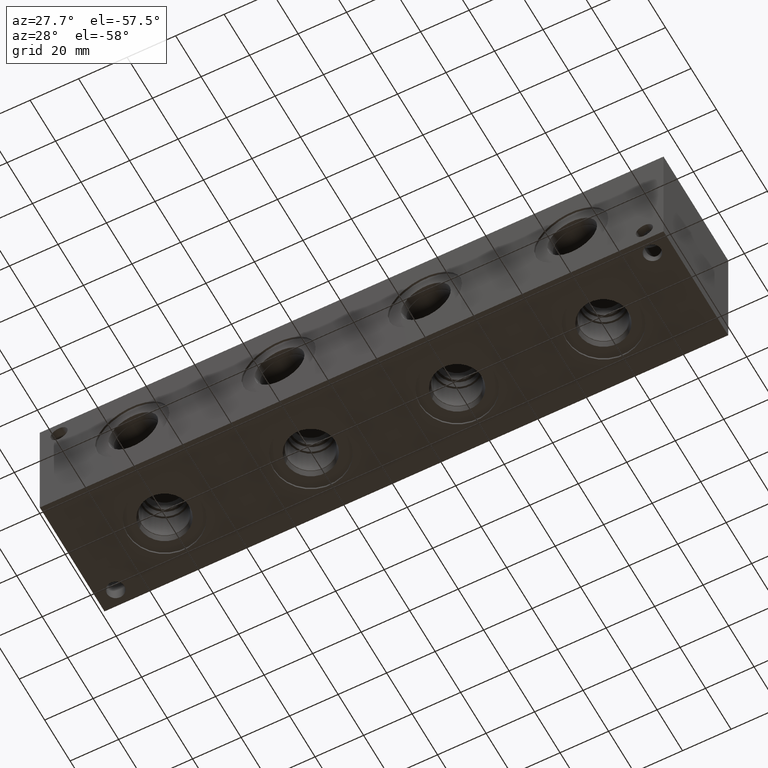
[diagram: clean part render]
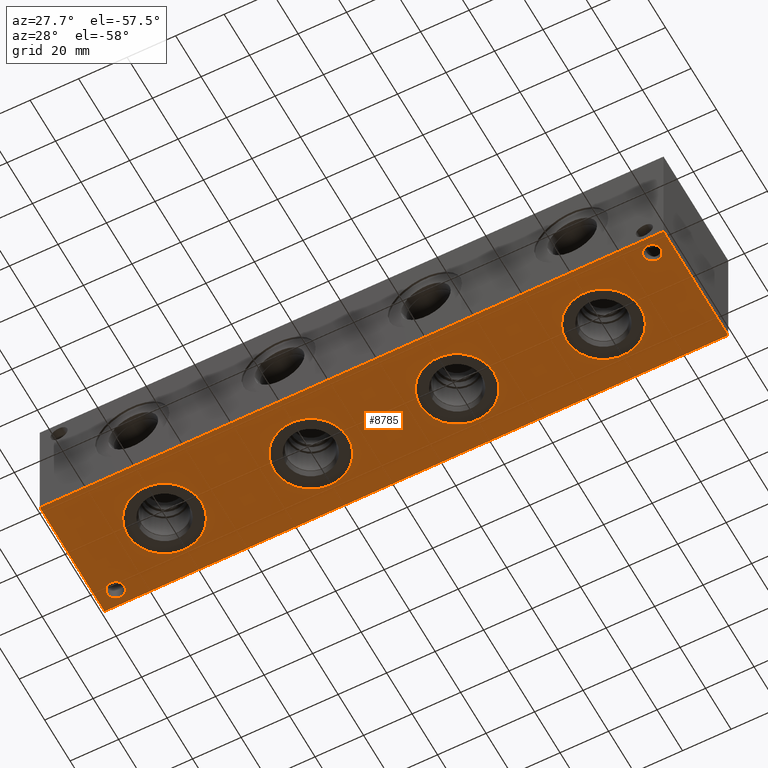
[diagram: same view with one face highlighted and labeled with its STEP entity id]
A machine part, auxiliary view. The second image highlights one B-rep face of the part: STEP entity #8785.
In plain terms, the highlighted planar face has unit normal (0, 0, 1).
Its self-contained STEP definition (entity closure, byte-faithful):
#186=CIRCLE('',#9022,15.3162);
#187=CIRCLE('',#9023,15.3162);
#197=CIRCLE('',#9038,15.3162);
#198=CIRCLE('',#9039,15.3162);
#208=CIRCLE('',#9054,15.3162);
#209=CIRCLE('',#9055,15.3162);
#288=CIRCLE('',#9211,15.3162);
#289=CIRCLE('',#9212,15.3162);
#404=CIRCLE('',#9413,3.5687);
#405=CIRCLE('',#9415,3.5687);
#484=FACE_BOUND('',#1719,.T.);
#485=FACE_BOUND('',#1720,.T.);
#486=FACE_BOUND('',#1721,.T.);
#487=FACE_BOUND('',#1722,.T.);
#488=FACE_BOUND('',#1723,.T.);
#489=FACE_BOUND('',#1724,.T.);
#728=PLANE('',#9442);
#1190=FACE_OUTER_BOUND('',#1718,.T.);
#1718=EDGE_LOOP('',(#7919,#7920,#7921,#7922));
#1719=EDGE_LOOP('',(#7923,#7924));
#1720=EDGE_LOOP('',(#7925,#7926));
#1721=EDGE_LOOP('',(#7927,#7928));
#1722=EDGE_LOOP('',(#7929,#7930));
#1723=EDGE_LOOP('',(#7931));
#1724=EDGE_LOOP('',(#7932));
#2447=LINE('',#15360,#3177);
#2450=LINE('',#15365,#3180);
#2452=LINE('',#15369,#3182);
#2454=LINE('',#15372,#3184);
#3177=VECTOR('',#11443,10.);
#3180=VECTOR('',#11448,10.);
#3182=VECTOR('',#11452,10.);
#3184=VECTOR('',#11456,10.);
#3981=VERTEX_POINT('',#14414);
#3982=VERTEX_POINT('',#14415);
#3992=VERTEX_POINT('',#14445);
#3993=VERTEX_POINT('',#14446);
#4003=VERTEX_POINT('',#14476);
#4004=VERTEX_POINT('',#14477);
#4100=VERTEX_POINT('',#14924);
#4101=VERTEX_POINT('',#14925);
#4214=VERTEX_POINT('',#15313);
#4215=VERTEX_POINT('',#15317);
#4227=VERTEX_POINT('',#15358);
#4228=VERTEX_POINT('',#15359);
#4229=VERTEX_POINT('',#15364);
#4230=VERTEX_POINT('',#15368);
#5075=EDGE_CURVE('',#3981,#3982,#186,.T.);
#5076=EDGE_CURVE('',#3982,#3981,#187,.T.);
#5090=EDGE_CURVE('',#3992,#3993,#197,.T.);
#5091=EDGE_CURVE('',#3993,#3992,#198,.T.);
#5105=EDGE_CURVE('',#4003,#4004,#208,.T.);
#5106=EDGE_CURVE('',#4004,#4003,#209,.T.);
#5257=EDGE_CURVE('',#4100,#4101,#288,.T.);
#5258=EDGE_CURVE('',#4101,#4100,#289,.T.);
#5437=EDGE_CURVE('',#4214,#4214,#404,.T.);
#5439=EDGE_CURVE('',#4215,#4215,#405,.T.);
#5457=EDGE_CURVE('',#4227,#4228,#2447,.T.);
#5460=EDGE_CURVE('',#4229,#4227,#2450,.T.);
#5462=EDGE_CURVE('',#4230,#4229,#2452,.T.);
#5464=EDGE_CURVE('',#4228,#4230,#2454,.T.);
#7919=ORIENTED_EDGE('',*,*,#5464,.F.);
#7920=ORIENTED_EDGE('',*,*,#5457,.F.);
#7921=ORIENTED_EDGE('',*,*,#5460,.F.);
#7922=ORIENTED_EDGE('',*,*,#5462,.F.);
#7923=ORIENTED_EDGE('',*,*,#5075,.T.);
#7924=ORIENTED_EDGE('',*,*,#5076,.T.);
#7925=ORIENTED_EDGE('',*,*,#5090,.T.);
#7926=ORIENTED_EDGE('',*,*,#5091,.T.);
#7927=ORIENTED_EDGE('',*,*,#5105,.T.);
#7928=ORIENTED_EDGE('',*,*,#5106,.T.);
#7929=ORIENTED_EDGE('',*,*,#5257,.T.);
#7930=ORIENTED_EDGE('',*,*,#5258,.T.);
#7931=ORIENTED_EDGE('',*,*,#5437,.T.);
#7932=ORIENTED_EDGE('',*,*,#5439,.T.);
#8785=ADVANCED_FACE('',(#1190,#484,#485,#486,#487,#488,#489),#728,.F.);
#9022=AXIS2_PLACEMENT_3D('',#14416,#10531,#10532);
#9023=AXIS2_PLACEMENT_3D('',#14417,#10533,#10534);
#9038=AXIS2_PLACEMENT_3D('',#14447,#10567,#10568);
#9039=AXIS2_PLACEMENT_3D('',#14448,#10569,#10570);
#9054=AXIS2_PLACEMENT_3D('',#14478,#10603,#10604);
#9055=AXIS2_PLACEMENT_3D('',#14479,#10605,#10606);
#9211=AXIS2_PLACEMENT_3D('',#14926,#10933,#10934);
#9212=AXIS2_PLACEMENT_3D('',#14927,#10935,#10936);
#9413=AXIS2_PLACEMENT_3D('',#15315,#11387,#11388);
#9415=AXIS2_PLACEMENT_3D('',#15319,#11392,#11393);
#9442=AXIS2_PLACEMENT_3D('',#15374,#11459,#11460);
#10531=DIRECTION('center_axis',(0.,0.,1.));
#10532=DIRECTION('ref_axis',(1.,0.,0.));
#10533=DIRECTION('center_axis',(0.,0.,1.));
#10534=DIRECTION('ref_axis',(1.,0.,0.));
#10567=DIRECTION('center_axis',(0.,0.,1.));
#10568=DIRECTION('ref_axis',(1.,0.,0.));
#10569=DIRECTION('center_axis',(0.,0.,1.));
#10570=DIRECTION('ref_axis',(1.,0.,0.));
#10603=DIRECTION('center_axis',(0.,0.,1.));
#10604=DIRECTION('ref_axis',(1.,0.,0.));
#10605=DIRECTION('center_axis',(0.,0.,1.));
#10606=DIRECTION('ref_axis',(1.,0.,0.));
#10933=DIRECTION('center_axis',(0.,0.,1.));
#10934=DIRECTION('ref_axis',(1.,0.,0.));
#10935=DIRECTION('center_axis',(0.,0.,1.));
#10936=DIRECTION('ref_axis',(1.,0.,0.));
#11387=DIRECTION('center_axis',(0.,0.,1.));
#11388=DIRECTION('ref_axis',(1.,0.,0.));
#11392=DIRECTION('center_axis',(0.,0.,1.));
#11393=DIRECTION('ref_axis',(1.,0.,0.));
#11443=DIRECTION('',(0.,-1.,0.));
#11448=DIRECTION('',(-1.,0.,0.));
#11452=DIRECTION('',(0.,1.,0.));
#11456=DIRECTION('',(1.,0.,0.));
#11459=DIRECTION('center_axis',(0.,0.,1.));
#11460=DIRECTION('ref_axis',(1.,0.,0.));
#14414=CARTESIAN_POINT('',(174.0662,25.4,0.));
#14415=CARTESIAN_POINT('',(143.4338,25.4,0.));
#14416=CARTESIAN_POINT('Origin',(158.75,25.4,0.));
#14417=CARTESIAN_POINT('Origin',(158.75,25.4,0.));
#14445=CARTESIAN_POINT('',(234.3912,25.4,0.));
#14446=CARTESIAN_POINT('',(203.7588,25.4,0.));
#14447=CARTESIAN_POINT('Origin',(219.075,25.4,0.));
#14448=CARTESIAN_POINT('Origin',(219.075,25.4,0.));
#14476=CARTESIAN_POINT('',(113.7412,25.4,0.));
#14477=CARTESIAN_POINT('',(83.1088,25.4,0.));
#14478=CARTESIAN_POINT('Origin',(98.425,25.4,0.));
#14479=CARTESIAN_POINT('Origin',(98.425,25.4,0.));
#14924=CARTESIAN_POINT('',(53.4162,25.4,0.));
#14925=CARTESIAN_POINT('',(22.7838,25.4,0.));
#14926=CARTESIAN_POINT('Origin',(38.1,25.4,0.));
#14927=CARTESIAN_POINT('Origin',(38.1,25.4,0.));
#15313=CARTESIAN_POINT('',(4.3561,44.45,0.));
#15315=CARTESIAN_POINT('Origin',(7.9248,44.45,0.));
#15317=CARTESIAN_POINT('',(245.6815,6.35,0.));
#15319=CARTESIAN_POINT('Origin',(249.2502,6.35,0.));
#15358=CARTESIAN_POINT('',(0.,50.8,0.));
#15359=CARTESIAN_POINT('',(0.,0.,0.));
#15360=CARTESIAN_POINT('',(0.,50.8,0.));
#15364=CARTESIAN_POINT('',(257.175,50.8,0.));
#15365=CARTESIAN_POINT('',(257.175,50.8,0.));
#15368=CARTESIAN_POINT('',(257.175,0.,0.));
#15369=CARTESIAN_POINT('',(257.175,0.,0.));
#15372=CARTESIAN_POINT('',(0.,0.,0.));
#15374=CARTESIAN_POINT('Origin',(128.5875,25.4,0.));